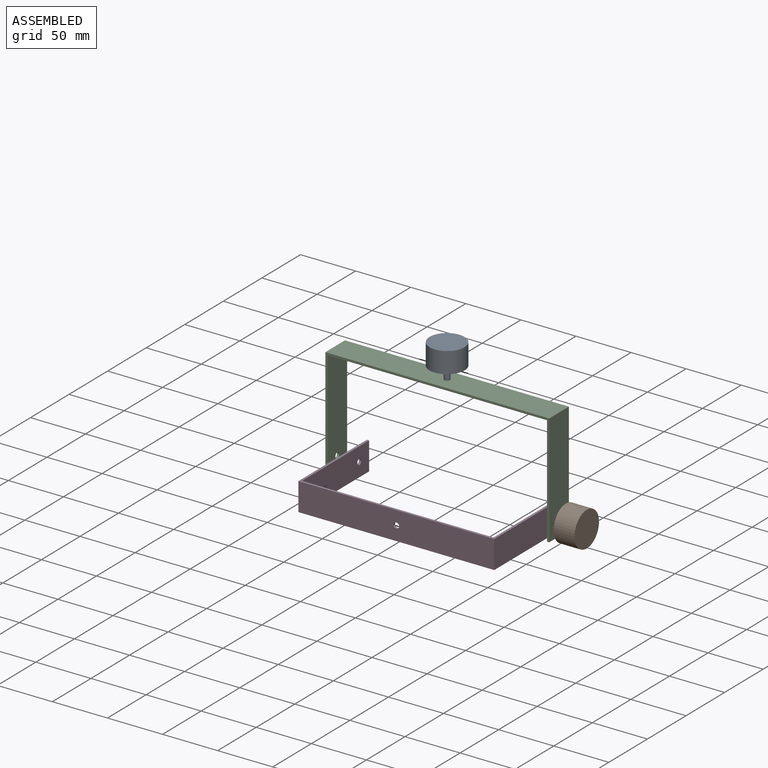
[diagram: assembled view]
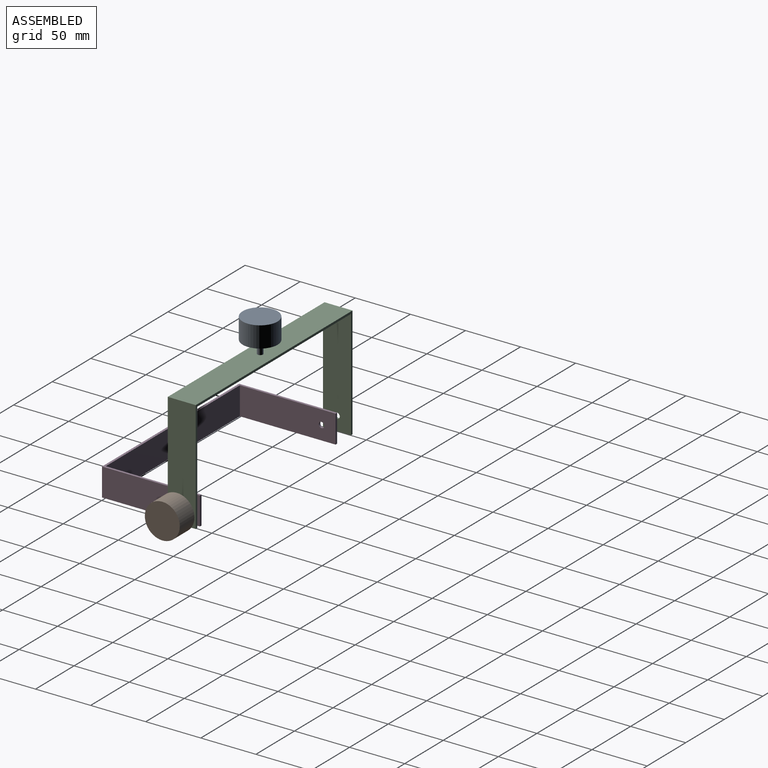
[diagram: assembled view, second angle]
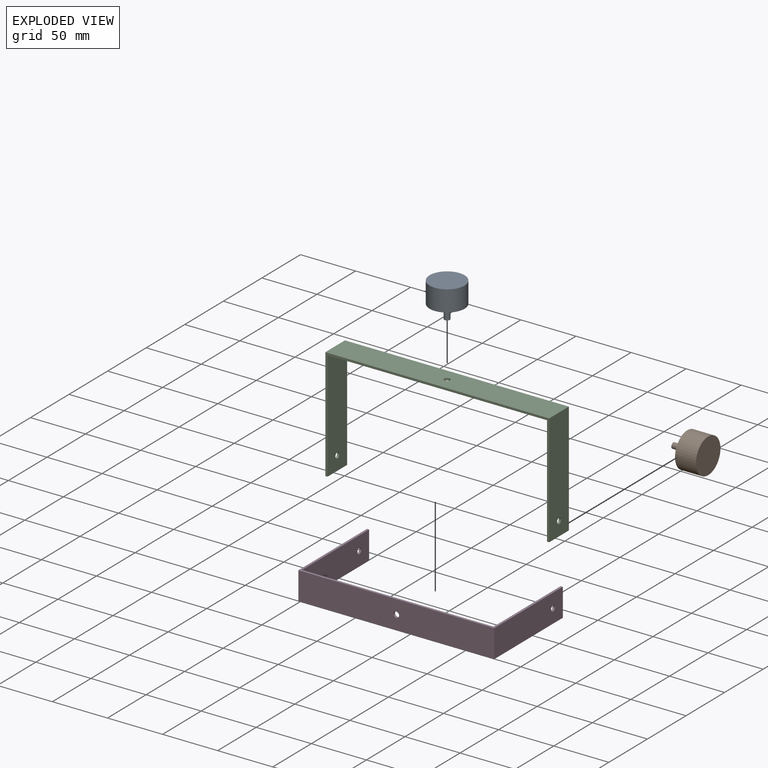
[diagram: exploded view]
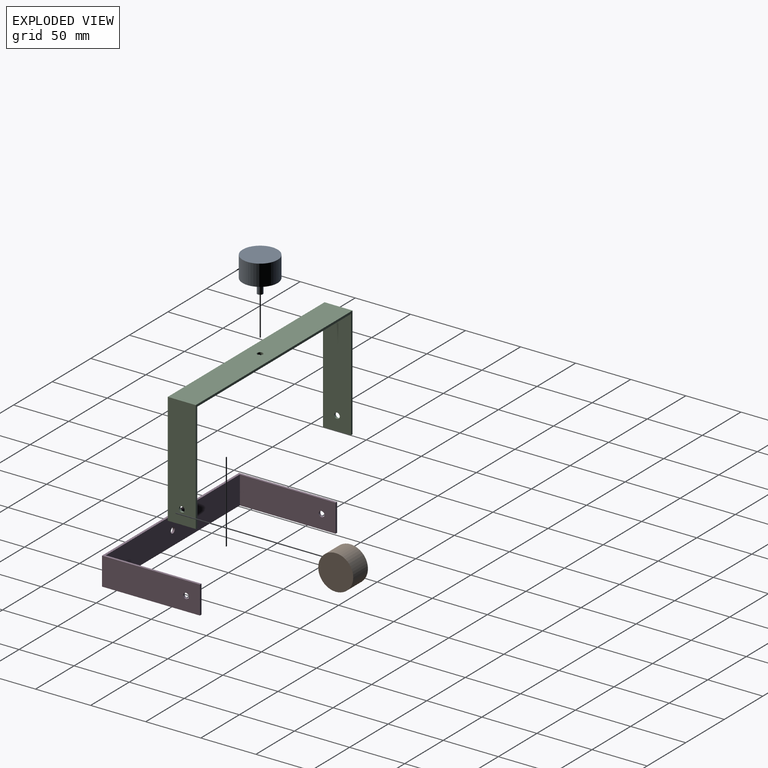
[diagram: exploded view, second angle]
ASSEMBLY  parts=4 mates=3
PART A: 5 faces, bbox 31.8x31.8x31.8 mm
  f0: cylinder r=15.88mm len=31.75mm, axis (0,1,0), area 1900.2mm2, adj f1,f2
  f1: plane 31.75x31.75mm, normal (0,-1,0), area 771.5mm2, adj f0,f3
  f2: plane 31.75x31.75mm, normal (0,1,0), area 791.7mm2, adj f0
  f3: cylinder r=2.54mm len=12.7mm, axis (0,1,0), area 202.7mm2, adj f1,f4
  f4: plane 5.08x5.08mm, normal (0,-1,0), area 20.3mm2, adj f3
PART B: same geometry as A
PART C: 13 faces, bbox 203.2x25.4x101.6 mm
  f0: plane 99.57x25.4mm, normal (-1,0,0), area 2508.8mm2, adj f1,f7,f8,f9,f11
  f1: plane 25.4x2.03mm, normal (0,0,-1), area 51.6mm2, adj f0,f2,f8,f9
  f2: plane 101.6x25.4mm, normal (1,0,0), area 2560.4mm2, adj f1,f3,f8,f9,f11
  f3: plane 203.2x25.4mm, normal (0,0,1), area 5141mm2, adj f2,f4,f8,f9,f12
  f4: plane 101.6x25.4mm, normal (-1,0,0), area 2560.4mm2, adj f3,f5,f8,f9,f10
  f5: plane 25.4x2.03mm, normal (0,0,-1), area 51.6mm2, adj f4,f6,f8,f9
  f6: plane 99.57x25.4mm, normal (1,0,0), area 2508.8mm2, adj f5,f7,f8,f9,f10
  f7: plane 199.14x25.4mm, normal (0,0,-1), area 5037.8mm2, adj f0,f6,f8,f9,f12
  f8: plane 203.2x101.6mm, normal (0,-1,0), area 817.5mm2, adj f0,f1,f2,f3,f4,f5,f6,f7
  f9: plane 203.2x101.6mm, normal (0,1,0), area 817.5mm2, adj f0,f1,f2,f3,f4,f5,f6,f7
  f10: cylinder r=2.54mm len=5.08mm, axis (1,0,0), area 32.4mm2, adj f4,f6
  f11: cylinder r=2.54mm len=5.08mm, axis (1,0,0), area 32.4mm2, adj f0,f2
  f12: cylinder r=2.54mm len=5.08mm, axis (0,0,1), area 32.4mm2, adj f3,f7
PART D: 13 faces, bbox 177.8x25.4x88.9 mm
  f0: plane 86.87x25.4mm, normal (-1,0,0), area 2186.2mm2, adj f1,f7,f8,f9,f11
  f1: plane 25.4x2.03mm, normal (0,0,-1), area 51.6mm2, adj f0,f2,f8,f9
  f2: plane 88.9x25.4mm, normal (1,0,0), area 2237.8mm2, adj f1,f3,f8,f9,f11
  f3: plane 177.8x25.4mm, normal (0,0,1), area 4495.9mm2, adj f2,f4,f8,f9,f12
  f4: plane 88.9x25.4mm, normal (-1,0,0), area 2237.8mm2, adj f3,f5,f8,f9,f10
  f5: plane 25.4x2.03mm, normal (0,0,-1), area 51.6mm2, adj f4,f6,f8,f9
  f6: plane 86.87x25.4mm, normal (1,0,0), area 2186.2mm2, adj f5,f7,f8,f9,f10
  f7: plane 173.74x25.4mm, normal (0,0,-1), area 4392.6mm2, adj f0,f6,f8,f9,f12
  f8: plane 177.8x88.9mm, normal (0,-1,0), area 714.3mm2, adj f0,f1,f2,f3,f4,f5,f6,f7
  f9: plane 177.8x88.9mm, normal (0,1,0), area 714.3mm2, adj f0,f1,f2,f3,f4,f5,f6,f7
  f10: cylinder r=2.54mm len=5.08mm, axis (1,0,0), area 32.4mm2, adj f4,f6
  f11: cylinder r=2.54mm len=5.08mm, axis (1,0,0), area 32.4mm2, adj f0,f2
  f12: cylinder r=2.54mm len=5.08mm, axis (0,0,1), area 32.4mm2, adj f3,f7
PLACE A rot(axis=(1,0,0),90deg) t=(-14.75,18.47,109.73)mm
PLACE B rot(axis=(0.58,0.58,-0.58),120deg) t=(112.04,18.47,-9.79)mm
PLACE C t=(-14.75,31.17,-22.49)mm
PLACE D rot(axis=(0,0.71,-0.71),180deg) t=(-7.5,31.17,-22.49)mm
MATE cylindrical A.f3 <-> C.f12  axis (0,0,1) through (-14.75,18.47,77.98)mm
MATE cylindrical B.f3 <-> D.f10  axis (-1,0,0) through (80.29,18.47,-9.79)mm
MATE cylindrical B.f3 <-> C.f10  axis (-1,0,0) through (80.29,18.47,-9.79)mm
